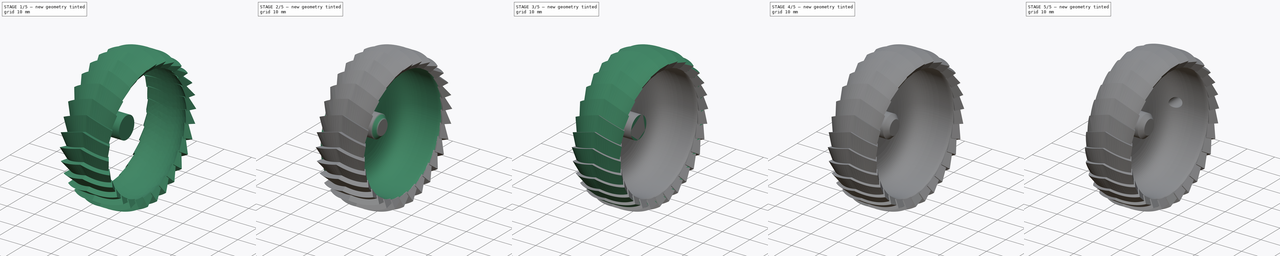
[diagram: build sequence overview — one tinted view per stage of 5, left to right]
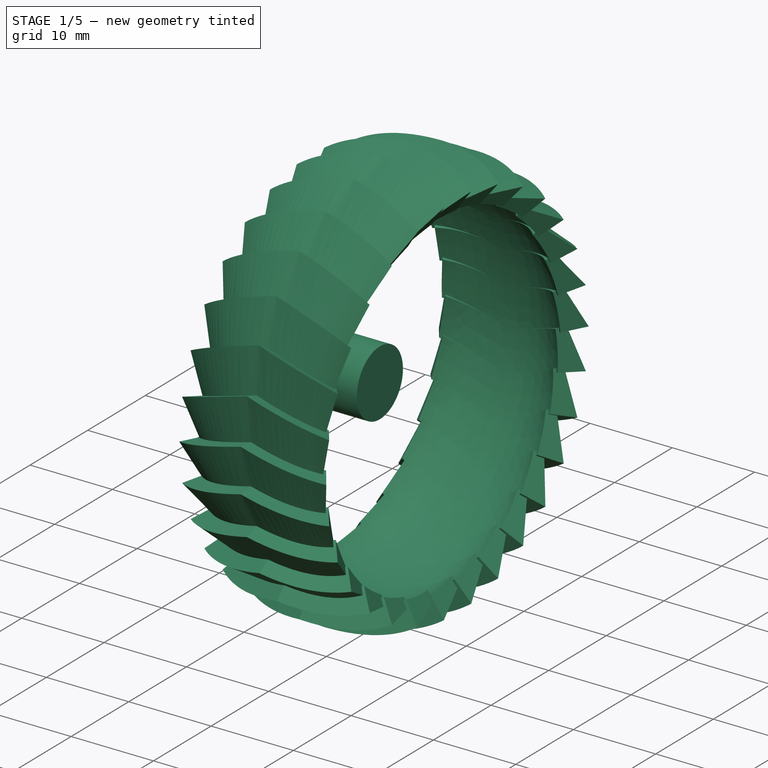
[diagram: stage 1 of 5 — iso view after this stage's code; geometry added in this stage tinted green]
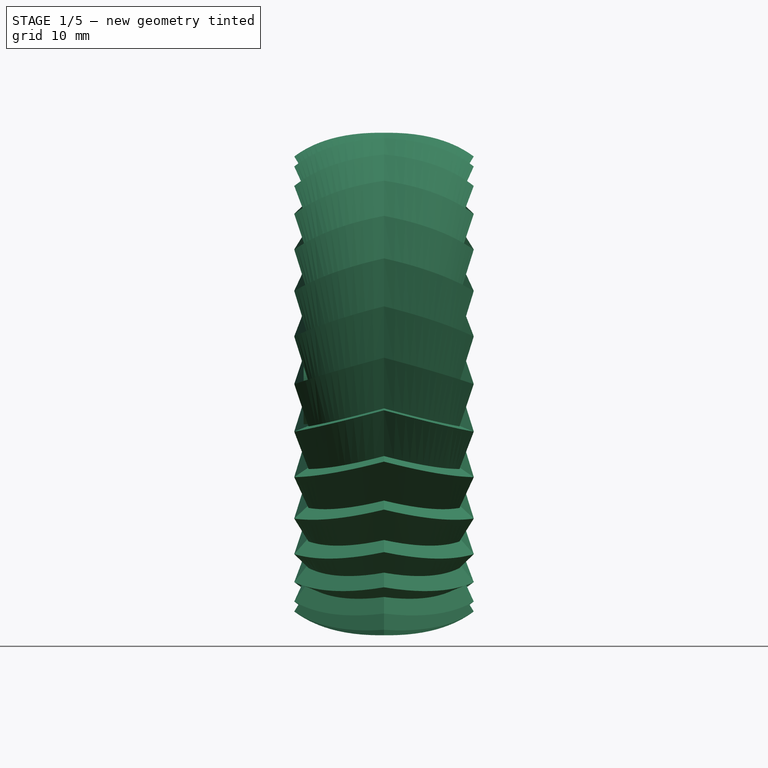
[diagram: stage 1 of 5 — front view after this stage's code; geometry added in this stage tinted green]
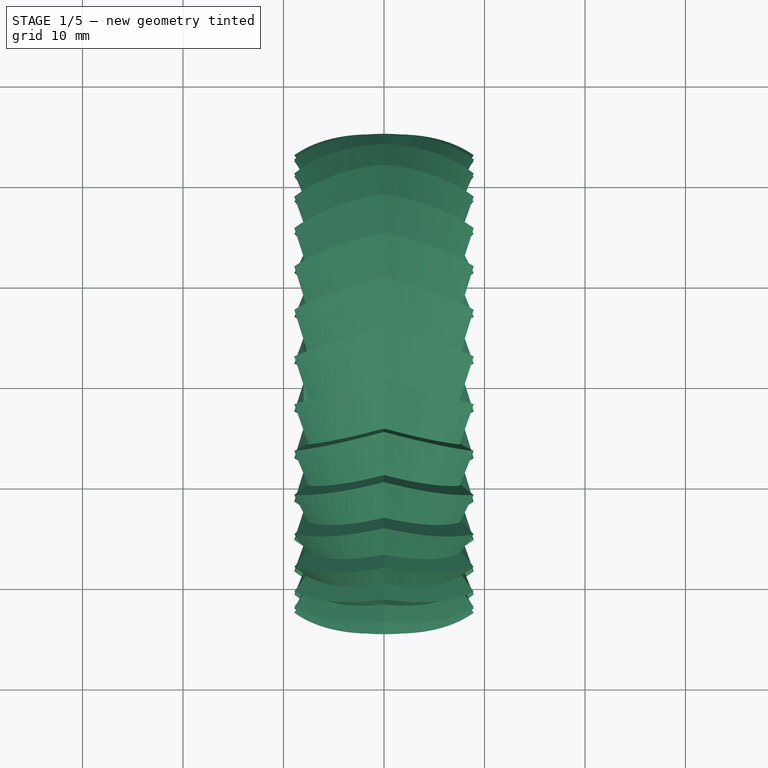
[diagram: stage 1 of 5 — top view after this stage's code; geometry added in this stage tinted green]
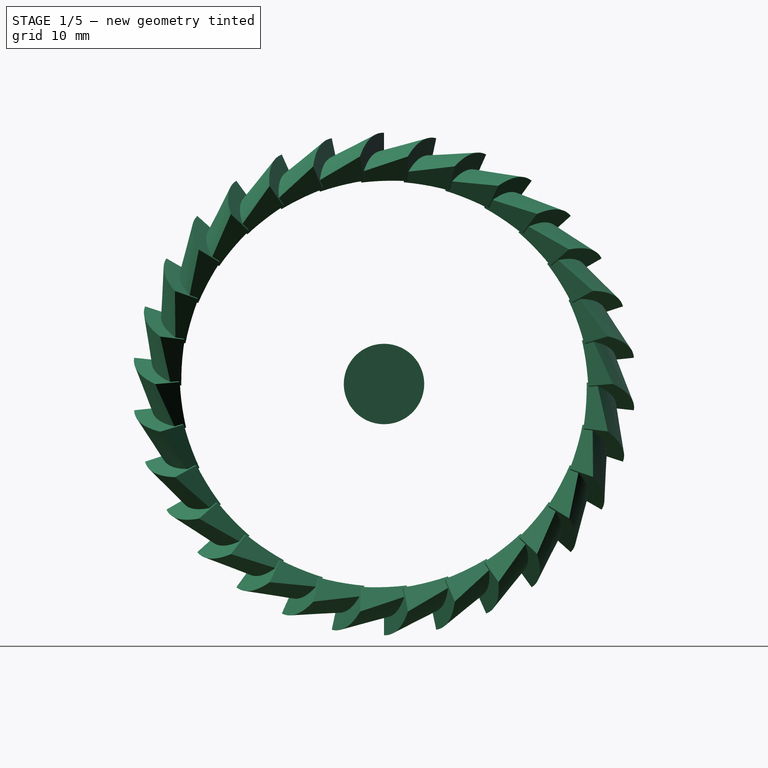
[diagram: stage 1 of 5 — right view after this stage's code; geometry added in this stage tinted green]
FCSTD DOCUMENT  (FreeCAD 2021.717R24301 +3627 (Git))
Label: wheel
License: All rights reserved
LicenseURL: http://en.wikipedia.org/wiki/All_rights_reserved
objects: Sketcher::SketchObject×18, PartDesign::Pocket×8, PartDesign::Chamfer×5, PartDesign::Plane×4, PartDesign::AdditivePipe×2, PartDesign::PolarPattern×2, PartDesign::Mirrored×2, PartDesign::Pad×2, PartDesign::Revolution×2, PartDesign::Groove×2, PartDesign::Body×2, Spreadsheet::Sheet×1
note: 99 computed .brp shape members not serialized (recipe doc carries the construction recipe); baked Part::Feature solids carry a one-line shape summary decoded from their .brp

FEATURE [Sketcher::SketchObject] Sketch
  FullyConstrained = true
  MapMode = 5
  Placement = pos=(0,0,0) rot=(0.57735,0.57735,0.57735;2.0944rad)
  Support = -> [YZ_Plane]
  sketch-geometry (6):
    g0: ArcOfCircle CenterX=0 CenterY=0 CenterZ=0 NormalX=0 NormalY=0 NormalZ=1 AngleXU=0 Radius=22 StartAngle=1.5708 EndAngle=1.78024
    g1: LineSegment StartX=-4.82355 StartY=22.693 StartZ=0 EndX=0 EndY=25 EndZ=0
    g2: LineSegment StartX=0 StartY=25 StartZ=0 EndX=0 EndY=22 EndZ=0
    g3: LineSegment StartX=-4.82355 StartY=22.693 StartZ=0 EndX=-4.57406 EndY=21.5192 EndZ=0
    g4: LineSegment [constr] StartX=0 StartY=0 StartZ=0 EndX=0 EndY=22 EndZ=0
    g5: LineSegment [constr] StartX=-4.57406 StartY=21.5192 StartZ=0 EndX=0 EndY=0 EndZ=0
  constraints (16):
    c: Coincident(g0,g-1)
    c: Angle(g0) = 0.20944
    c: Coincident(g2,g1)
    c: Coincident(g2,g0)
    c: Coincident(g3,g1)
    c: Coincident(g3,g0)
    c: Distance(g2) = 3
    c: Distance(g3) = 1.2
    c: Vertical(g2)
    c: Coincident(g4,g0)
    c: Coincident(g4,g0)
    c: Parallel(g4,g2)
    c: Coincident(g5,g0)
    c: Coincident(g5,g0)
    c: Parallel(g3,g5)
    c: DistanceY(g-1,g1) = 25
FEATURE [PartDesign::Plane] DatumPlane
  AttachmentOffset = pos=(0,0,0) rot=(0,1,0;0.261799rad)
  Length = 10
  MapMode = 5
  MinimumLength = 10
  MinimumWidth = 10
  Placement = pos=(0,0,0) rot=(0.983106,0.129428,0.129428;1.58783rad)
  ResizeMode = 0
  Support = -> [XZ_Plane]
  Width = 10
FEATURE [Sketcher::SketchObject] Sketch001
  FullyConstrained = false
  MapMode = 5
  Placement = pos=(0,0,0) rot=(0.983106,0.129428,0.129428;1.58783rad)
  Support = -> [DatumPlane]
  sketch-geometry (6):
    g0: Circle [constr] CenterX=0 CenterY=22.9172 CenterZ=0 NormalX=0 NormalY=0 NormalZ=1 AngleXU=0 Radius=1
    g1: Circle [constr] CenterX=-5.18027 CenterY=22.9985 CenterZ=0 NormalX=0 NormalY=0 NormalZ=1 AngleXU=0 Radius=1
    g2: Circle [constr] CenterX=-8 CenterY=20.9658 CenterZ=0 NormalX=0 NormalY=0 NormalZ=1 AngleXU=0 Radius=1
    g3: BSplineCurve PolesCount=3 KnotsCount=2 Degree=2 IsPeriodic=0
    g4: GeomPoint [constr] X=0 Y=22.9172 Z=0
    g5: GeomPoint [constr] X=-8 Y=20.9658 Z=0
  constraints (10):
    c: PointOnObject(g3,g-2)
    c: Weight(g0) = 1
    c: Equal(g0,g1)
    c: Equal(g0,g2)
    c: InternalAlignment(g0,g3)
    c: InternalAlignment(g1,g3)
    c: InternalAlignment(g2,g3)
    c: InternalAlignment(g4,g3)
    c: InternalAlignment(g5,g3)
    c: DistanceX(g3,g-1) = 8
FEATURE [PartDesign::AdditivePipe] AdditivePipe
  AuxilleryCurvelinear = true
  AuxillerySpineTangent = false
  Binormal = (0,0,0)
  ClaimChildren = false
  Fit = 0
  FitJoin = 0
  InnerFit = 0
  InnerFitJoin = 0
  Mode = 0
  NewSolid = false
  Placement = pos=(0,0,0) rot=(0.57735,0.57735,0.57735;2.0944rad)
  Profile = -> Sketch
  Spine = -> Sketch001 [Edge1]
  SpineTangent = false
  Suppress = false
  Transformation = 0
  Transition = 1
  _ProfileBasedVersion = 1
FEATURE [PartDesign::PolarPattern] PolarPattern
  Angle = 360
  Axis = -> Sketch [N_Axis]
  BaseFeature = -> AdditivePipe
  CopyShape = false
  NewSolid = false
  Occurrences = 30
  OriginalSubs = -> [AdditivePipe]
  Originals = -> [AdditivePipe]
  ParallelTransform = true
  Placement = pos=(0,0,0) rot=(0.57735,0.57735,0.57735;2.0944rad)
  SubTransform = true
  Suppress = false
FEATURE [PartDesign::Mirrored] Mirrored
  BaseFeature = -> PolarPattern
  CopyShape = false
  MirrorPlane = -> YZ_Plane
  NewSolid = false
  OriginalSubs = -> [PolarPattern,AdditivePipe]
  Originals = -> [PolarPattern,AdditivePipe]
  ParallelTransform = true
  Placement = pos=(0,0,0) rot=(0.57735,0.57735,0.57735;2.0944rad)
  SubTransform = true
  Suppress = false
FEATURE [PartDesign::Plane] DatumPlane001
  AttachmentOffset = pos=(0,0,-8) rot=(0,0,1;0rad)
  Length = 49.7261
  MapMode = 5
  MinimumLength = 10
  MinimumWidth = 10
  Placement = pos=(-8,1.8e-15,-1.8e-15) rot=(0.57735,0.57735,0.57735;2.0944rad)
  ResizeMode = 0
  Support = -> [YZ_Plane]
  Width = 50
FEATURE [Sketcher::SketchObject] Sketch002
  FullyConstrained = true
  MapMode = 5
  Placement = pos=(-8,1.8e-15,-1.8e-15) rot=(0.57735,0.57735,0.57735;2.0944rad)
  Support = -> [DatumPlane001]
  expr: Constraints[1] = <<Params>>.motor_mount_diameter
  sketch-geometry (1):
    g0: Circle CenterX=0 CenterY=0 CenterZ=0 NormalX=0 NormalY=0 NormalZ=1 AngleXU=0 Radius=4
  constraints (2):
    c: Coincident(g0,g-1)
    c: Diameter(g0) = 8
FEATURE [PartDesign::Pad] Pad
  BaseFeature = -> Mirrored
  ClaimChildren = false
  Direction = (1,1,1)
  Fit = 0
  FitJoin = 0
  InnerFit = 0
  InnerFitJoin = 0
  InnerTaperAngle = 0
  InnerTaperAngleRev = 0
  Length = 7.5
  Length2 = 100
  Linearize = true
  NewSolid = false
  Placement = pos=(0,0,0) rot=(0.57735,0.57735,0.57735;2.0944rad)
  Profile = -> Sketch002
  Suppress = false
  Type = 0
  _ProfileBasedVersion = 1
  expr: Length = <<Params>>.motor_mount_insert_depth + 1
FEATURE [Sketcher::SketchObject] Sketch003
  FullyConstrained = true
  MapMode = 5
  Placement = pos=(-8,0,0) rot=(0.57735,0.57735,-0.57735;4.18879rad)
  Support = -> [Pad]
  expr: Constraints[3] = <<Params>>.motor_shaft_flat_diameter / 2
  expr: Constraints[7] = <<Params>>.motor_shaft_diameter
  sketch-geometry (4):
    g0: LineSegment StartX=1.25 StartY=0.958188 StartZ=0 EndX=1.25 EndY=-0.958188 EndZ=0
    g1: GeomPoint [constr] X=1.25 Y=-0.958188 Z=0
    g2: ArcOfCircle CenterX=0 CenterY=0 CenterZ=0 NormalX=0 NormalY=0 NormalZ=1 AngleXU=0 Radius=1.575 StartAngle=0.65401 EndAngle=5.62918
    g3: GeomPoint [constr] X=1.25 Y=0 Z=0
  constraints (8):
    c: Coincident(g2,g-1)
    c: Coincident(g2,g0)
    c: Coincident(g2,g1)
    c: DistanceX(g2,g3) = 1.25
    c: Horizontal(g3,g2)
    c: Coincident(g0,g2)
    c: Symmetric(g0,g0,g3)
    c: Diameter(g2) = 3.15
FEATURE [PartDesign::Pocket] Pocket
  BaseFeature = -> Pad
  ClaimChildren = false
  Fit = 0
  FitJoin = 0
  InnerFit = 0
  InnerFitJoin = 0
  InnerTaperAngle = 0
  InnerTaperAngleRev = 0
  Length = 6.5
  Length2 = 100
  Linearize = true
  NewSolid = false
  Placement = pos=(0,0,0) rot=(0.57735,0.57735,0.57735;2.0944rad)
  Profile = -> Sketch003
  Suppress = false
  Type = 0
  _ProfileBasedVersion = 1
  expr: Length = <<Params>>.motor_mount_insert_depth
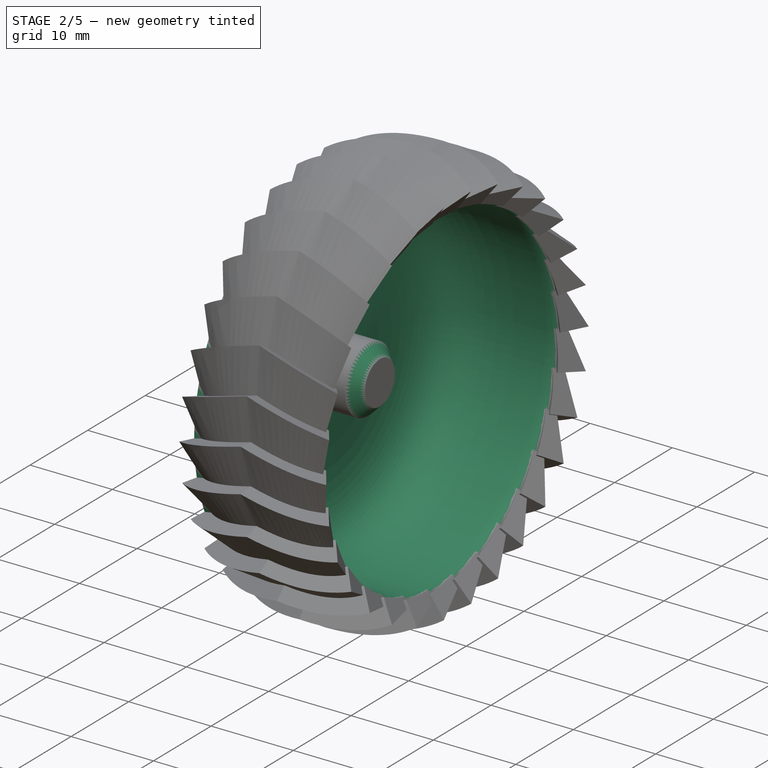
[diagram: stage 2 of 5 — iso view after this stage's code; geometry added in this stage tinted green]
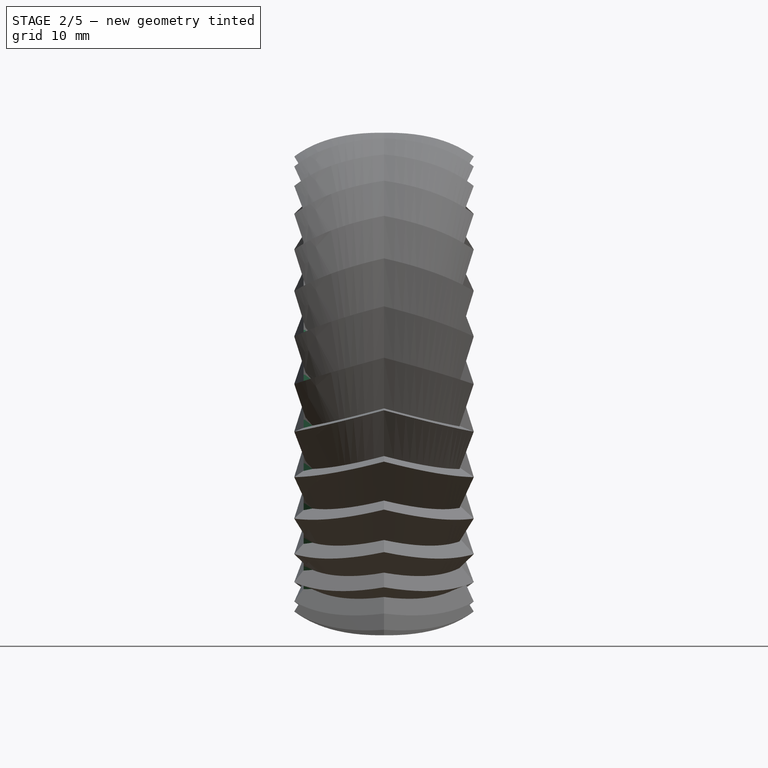
[diagram: stage 2 of 5 — front view after this stage's code; geometry added in this stage tinted green]
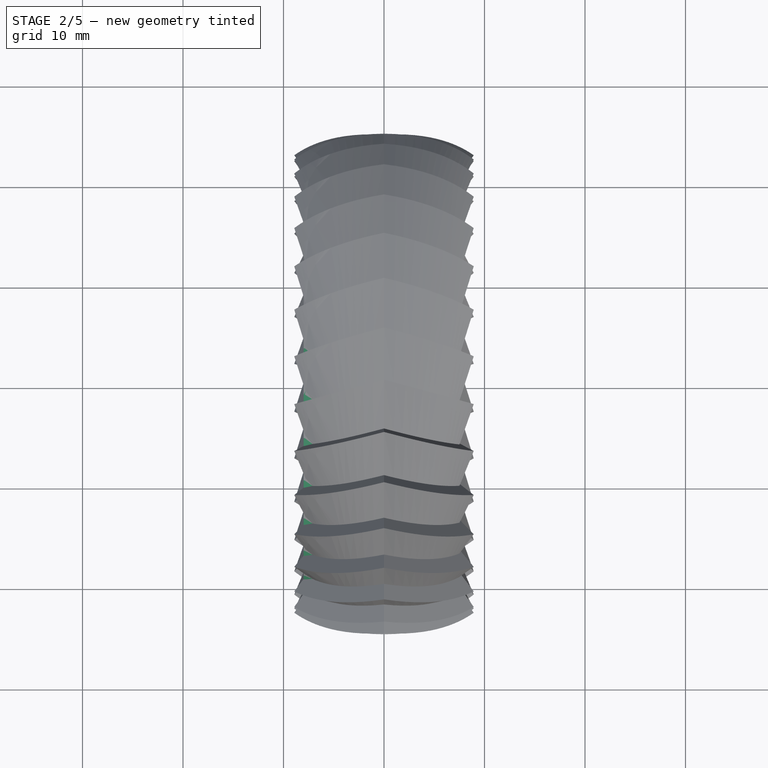
[diagram: stage 2 of 5 — top view after this stage's code; geometry added in this stage tinted green]
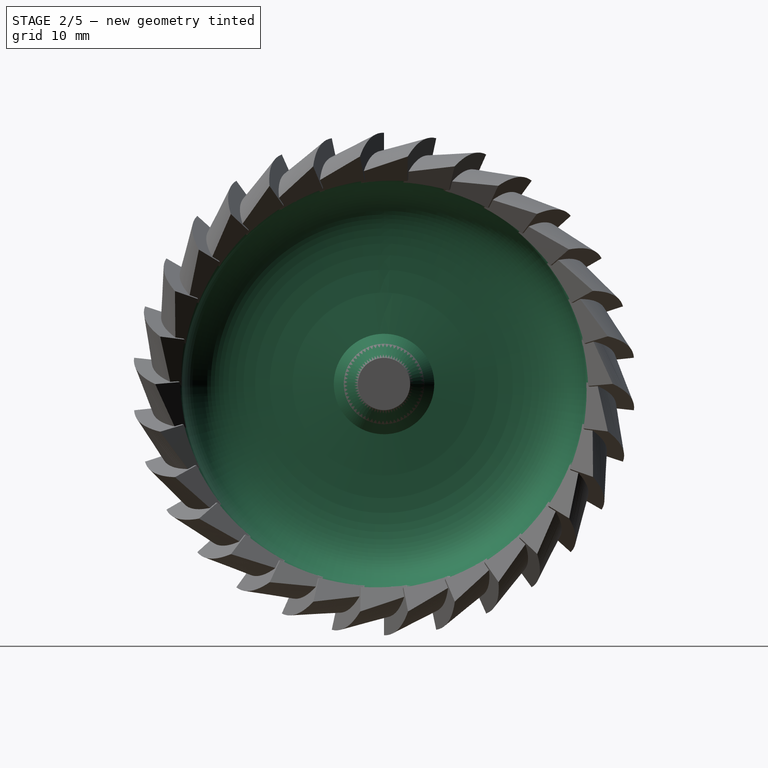
[diagram: stage 2 of 5 — right view after this stage's code; geometry added in this stage tinted green]
FEATURE [Sketcher::SketchObject] Sketch004
  ExternalGeometry = -> [Pocket]
  FullyConstrained = true
  MapMode = 5
  Placement = pos=(8e-16,1.25,-1e-16) rot=(0.57735,0.57735,-0.57735;2.0944rad)
  Support = -> [Pocket]
  sketch-geometry (1):
    g0: Circle CenterX=0 CenterY=-4 CenterZ=0 NormalX=0 NormalY=0 NormalZ=1 AngleXU=0 Radius=1.375
  constraints (3):
    c: Vertical(g0,g-1)
    c: Diameter(g0) = 2.75
    c: DistanceY(g-3,g0) = 4
FEATURE [PartDesign::Pocket] Pocket001
  BaseFeature = -> Pocket
  ClaimChildren = false
  Fit = 0
  FitJoin = 0
  InnerFit = 0
  InnerFitJoin = 0
  InnerTaperAngle = 0
  InnerTaperAngleRev = 0
  Length = 5
  Length2 = 100
  Linearize = true
  NewSolid = false
  Placement = pos=(0,0,0) rot=(0.57735,0.57735,0.57735;2.0944rad)
  Profile = -> Sketch004
  Suppress = false
  Type = 0
  _ProfileBasedVersion = 1
FEATURE [Sketcher::SketchObject] Sketch005
  ExternalGeometry = -> [Pocket001]
  FullyConstrained = true
  MapMode = 5
  Placement = pos=(8e-16,1.25,-1e-16) rot=(0.57735,0.57735,-0.57735;2.0944rad)
  Support = -> [Pocket001]
  sketch-geometry (1):
    g0: Circle CenterX=0 CenterY=-4 CenterZ=0 NormalX=0 NormalY=0 NormalZ=1 AngleXU=0 Radius=1.75
  constraints (2):
    c: Coincident(g0,g-3)
    c: Diameter(g0) = 3.5
FEATURE [Sketcher::SketchObject] Sketch006
  FullyConstrained = false
  MapMode = 2
  Placement = pos=(0,0,0) rot=(1,0,0;1.5708rad)
  Support = -> [XZ_Plane]
  sketch-geometry (17):
    g0: LineSegment StartX=-8 StartY=3 StartZ=0 EndX=-8 EndY=21.5 EndZ=0
    g1-g8: Circle [constr] x8 (B-spline internal-alignment scaffolding for g9; pole/knot coordinates omitted)
    g9: BSplineCurve PolesCount=8 KnotsCount=6 Degree=3 IsPeriodic=0
    g10-g15: GeomPoint [constr] x6 (B-spline internal-alignment scaffolding for g9; pole/knot coordinates omitted)
    g16: LineSegment StartX=-6.5283 StartY=3 StartZ=0 EndX=-8 EndY=3 EndZ=0
  constraints (12):
    c: Vertical(g0)
    c: Coincident(g9,g0)
    c: Weight(g1) = 1
    c: Equal(g1, g2-g8) x7
    c: InternalAlignment(g1-g8 -> g9) x8
    c: InternalAlignment(g10-g15 -> g9) x6
    c: Coincident(g16,g9)
    c: Coincident(g16,g0)
    c: Horizontal(g16)
    c: DistanceY(g-1,g9) = 3
    c: DistanceX(g0,g-1) = 8
    c: DistanceY(g-1,g0) = 21.5  'BackHeight'
FEATURE [PartDesign::Chamfer] Chamfer
  Angle = 45
  Base = -> Pocket001 [Edge939,Edge938]
  BaseFeature = -> Pocket001
  ChamferType = 0
  FlipDirection = false
  NewSolid = false
  Placement = pos=(0,0,0) rot=(0.57735,0.57735,0.57735;2.0944rad)
  Size = 0.6
  Size2 = 1
  SupportTransform = false
  Suppress = false
FEATURE [PartDesign::Chamfer] Chamfer001
  Angle = 45
  Base = -> Chamfer [Edge12]
  BaseFeature = -> Chamfer
  ChamferType = 0
  FlipDirection = false
  NewSolid = false
  Placement = pos=(0,0,0) rot=(0.57735,0.57735,0.57735;2.0944rad)
  Size = 1.4
  Size2 = 1
  SupportTransform = false
  Suppress = false
FEATURE [PartDesign::Revolution] Revolution
  Angle = 360
  Axis = (1,0,0)
  Base = (0,0,0)
  BaseFeature = -> Chamfer001
  ClaimChildren = false
  Fit = 0
  FitJoin = 0
  InnerFit = 0
  InnerFitJoin = 0
  NewSolid = false
  Placement = pos=(0,0,0) rot=(0.57735,0.57735,0.57735;2.0944rad)
  Profile = -> Sketch006
  ReferenceAxis = -> X_Axis
  Refine = true
  Suppress = false
  _ProfileBasedVersion = 1
FEATURE [PartDesign::Body] Body001  label="Wheel"
  AutoGroupSolids = false
  ExportMode = 0
  Group = -> [Sketch009,DatumPlane002,Sketch010,AdditivePipe001,PolarPattern001,Mirrored001,DatumPlane003,Sketch011,Pad001,Sketch012,Pocket004,Sketch013,Pocket005,Chamfer002,Chamfer003,Revolution001,Sketch014,Pocket006,Sketch015,Sketch016,Pocket007,Sketch017,Groove001]
  Origin = -> Origin001
  Tip = -> Groove001
  _ExportChildren = -> [DatumPlane002,AdditivePipe001,PolarPattern001,Mirrored001,DatumPlane003,Pad001,Pocket004,Pocket005,Chamfer002,Chamfer003,Revolution001,Pocket006,Pocket007,Groove001]
  _GroupVersion = 1
FEATURE [PartDesign::Chamfer] Chamfer004
  Angle = 45
  Base = -> Revolution [Edge5,Edge6]
  BaseFeature = -> Revolution
  ChamferType = 0
  FlipDirection = false
  NewSolid = false
  Placement = pos=(0,0,0) rot=(0.57735,0.57735,0.57735;2.0944rad)
  Size = 1
  Size2 = 1
  SupportTransform = false
  Suppress = false
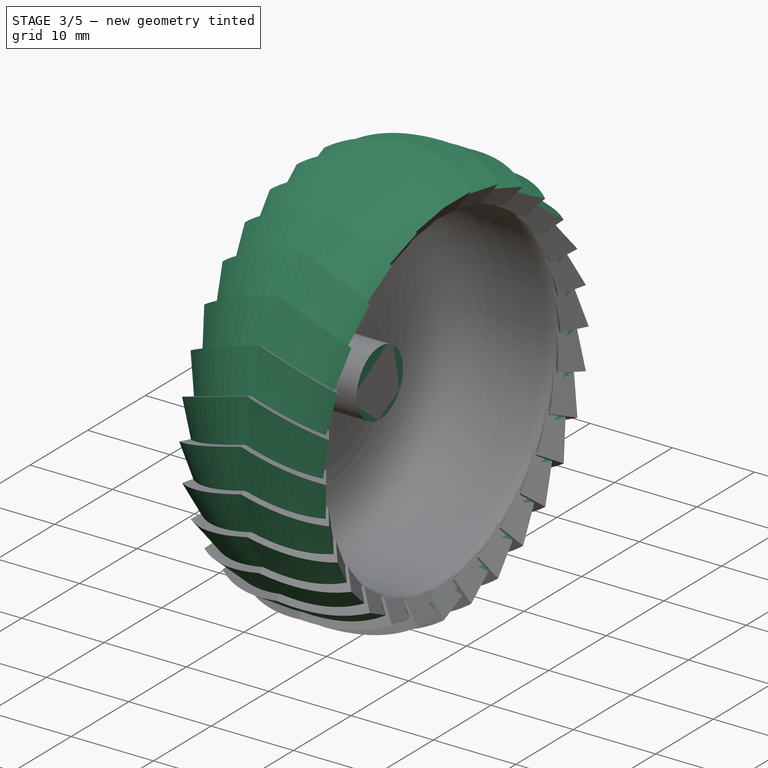
[diagram: stage 3 of 5 — iso view after this stage's code; geometry added in this stage tinted green]
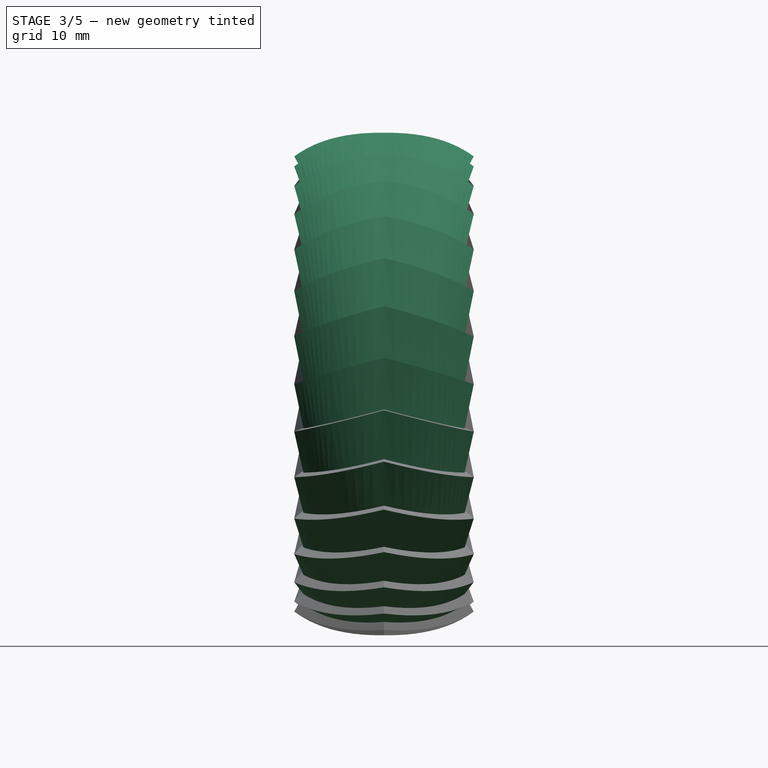
[diagram: stage 3 of 5 — front view after this stage's code; geometry added in this stage tinted green]
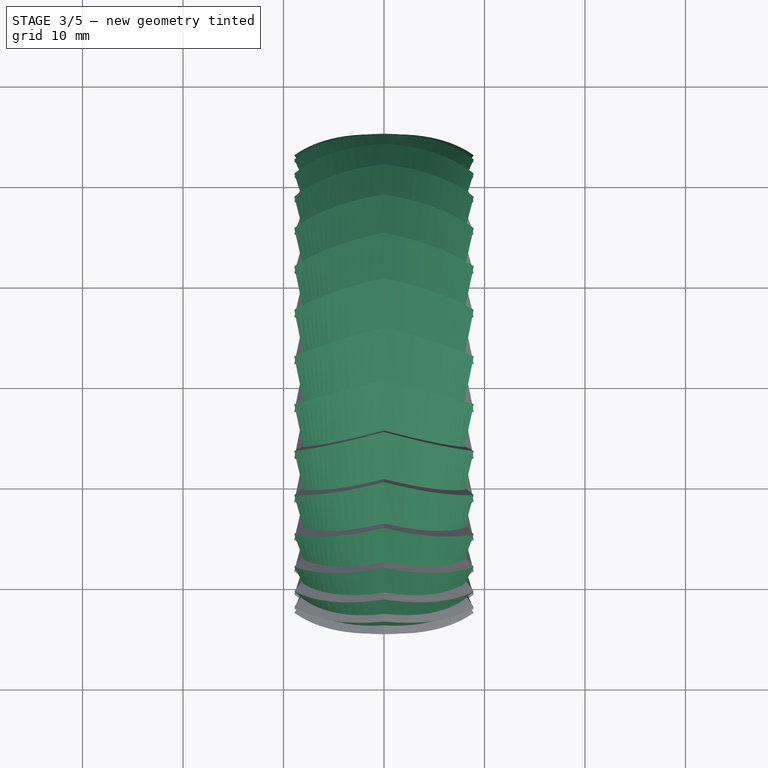
[diagram: stage 3 of 5 — top view after this stage's code; geometry added in this stage tinted green]
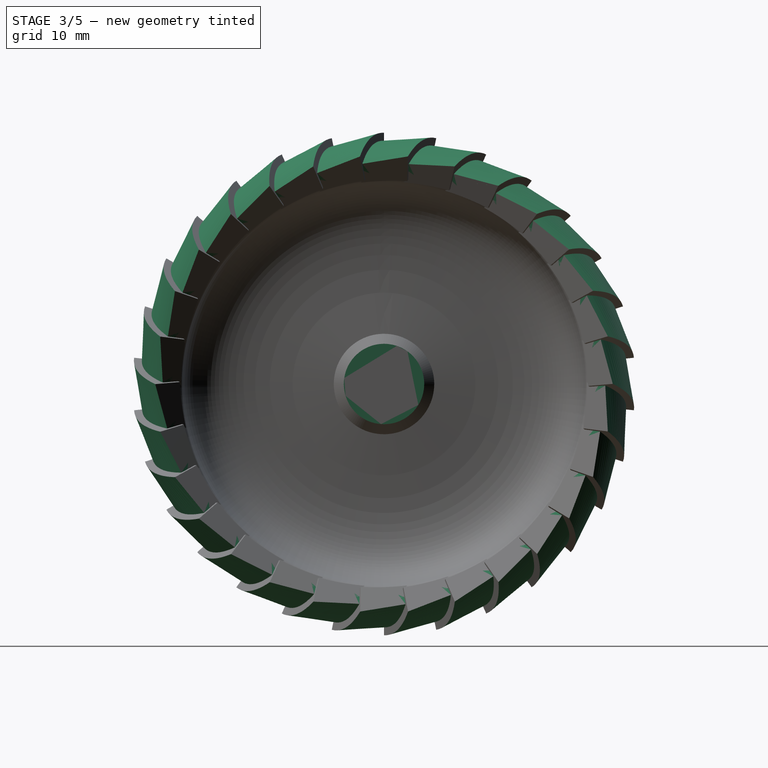
[diagram: stage 3 of 5 — right view after this stage's code; geometry added in this stage tinted green]
FEATURE [Spreadsheet::Sheet] Spreadsheet  label="Params"
  PythonMode = false
  cells = A1=diameter; B1(diameter)==50mm; A2=motor_shaft_diameter; B2(motor_shaft_diameter)==3.15mm; A3=motor_shaft_flat_diameter; B3(motor_shaft_flat_diameter)==2.5mm; A4=motor_mount_diameter; B4(motor_mount_diameter)==8mm; A5=motor_mount_insert_depth; B5(motor_mount_insert_depth)==6.5mm
FEATURE [Sketcher::SketchObject] Sketch007
  FullyConstrained = true
  MapMode = 5
  Placement = pos=(-8,1.8e-15,-1.8e-15) rot=(0.57735,0.57735,0.57735;2.0944rad)
  Support = -> [DatumPlane001]
  expr: Constraints[1] = <<Params>>.diameter * 1
  sketch-geometry (1):
    g0: Circle CenterX=0 CenterY=0 CenterZ=0 NormalX=0 NormalY=0 NormalZ=1 AngleXU=0 Radius=25
  constraints (2):
    c: Coincident(g0,g-1)
    c: Diameter(g0) = 50
FEATURE [Sketcher::SketchObject] Sketch008
  FullyConstrained = false
  MapMode = 5
  Support = -> [XY_Plane]
  sketch-geometry (8):
    g0: LineSegment StartX=-8 StartY=23.6833 StartZ=0 EndX=-8 EndY=18.2689 EndZ=0
    g1: LineSegment StartX=-8 StartY=23.6833 StartZ=0 EndX=-6.50624 EndY=24.0515 EndZ=0
    g2: Circle [constr] CenterX=-6.50624 CenterY=24.0515 CenterZ=0 NormalX=0 NormalY=0 NormalZ=1 AngleXU=0 Radius=1
    g3: Circle [constr] CenterX=-7.99449 CenterY=23.7727 CenterZ=0 NormalX=0 NormalY=0 NormalZ=1 AngleXU=0 Radius=1
    g4: Circle [constr] CenterX=-8 CenterY=18.2689 CenterZ=0 NormalX=0 NormalY=0 NormalZ=1 AngleXU=0 Radius=1
    g5: BSplineCurve PolesCount=3 KnotsCount=2 Degree=2 IsPeriodic=0
    g6: GeomPoint [constr] X=-6.50624 Y=24.0515 Z=0
    g7: GeomPoint [constr] X=-8 Y=18.2689 Z=0
  constraints (13):
    c: Vertical(g0)
    c: DistanceX(g0,g-1) = 8
    c: Coincident(g1,g0)
    c: Coincident(g5,g1)
    c: Weight(g2) = 1
    c: Equal(g2,g3)
    c: Equal(g2,g4)
    c: Coincident(g5,g0)
    c: InternalAlignment(g2,g5)
    c: InternalAlignment(g3,g5)
    c: InternalAlignment(g4,g5)
    c: InternalAlignment(g6,g5)
    c: InternalAlignment(g7,g5)
FEATURE [PartDesign::Plane] DatumPlane002
  AttachmentOffset = pos=(0,0,0) rot=(0,1,0;0.261799rad)
  Length = 10
  MapMode = 5
  MinimumLength = 10
  MinimumWidth = 10
  Placement = pos=(0,0,0) rot=(0.983106,0.129428,0.129428;1.58783rad)
  ResizeMode = 0
  Support = -> [XZ_Plane001]
  Width = 10
FEATURE [Sketcher::SketchObject] Sketch009
  FullyConstrained = true
  MapMode = 5
  Placement = pos=(0,0,0) rot=(0.57735,0.57735,0.57735;2.0944rad)
  Support = -> [YZ_Plane001]
  sketch-geometry (6):
    g0: ArcOfCircle CenterX=0 CenterY=0 CenterZ=0 NormalX=0 NormalY=0 NormalZ=1 AngleXU=0 Radius=23 StartAngle=1.5708 EndAngle=1.78024
    g1: LineSegment StartX=-5.03146 StartY=23.6712 StartZ=0 EndX=1.8e-15 EndY=25 EndZ=0
    g2: LineSegment StartX=1.4e-15 StartY=25 StartZ=0 EndX=1.4e-15 EndY=23 EndZ=0
    g3: LineSegment StartX=-5.03146 StartY=23.6712 StartZ=0 EndX=-4.78197 EndY=22.4974 EndZ=0
    g4: LineSegment [constr] StartX=0 StartY=0 StartZ=0 EndX=1.4e-15 EndY=23 EndZ=0
    g5: LineSegment [constr] StartX=-4.78197 StartY=22.4974 StartZ=0 EndX=0 EndY=0 EndZ=0
  constraints (16):
    c: Coincident(g0,g-1)
    c: Angle(g0) = 0.20944
    c: Coincident(g2,g1)
    c: Coincident(g2,g0)
    c: Coincident(g3,g1)
    c: Coincident(g3,g0)
    c: Distance(g2) = 2
    c: Distance(g3) = 1.2
    c: Vertical(g2)
    c: Coincident(g4,g0)
    c: Coincident(g4,g0)
    c: Parallel(g4,g2)
    c: Coincident(g5,g0)
    c: Coincident(g5,g0)
    c: Parallel(g3,g5)
    c: DistanceY(g-1,g1) = 25
FEATURE [Sketcher::SketchObject] Sketch010
  FullyConstrained = false
  MapMode = 5
  Placement = pos=(0,0,0) rot=(0.983106,0.129428,0.129428;1.58783rad)
  Support = -> [DatumPlane002]
  sketch-geometry (6):
    g0: Circle [constr] CenterX=0 CenterY=22.9172 CenterZ=0 NormalX=0 NormalY=0 NormalZ=1 AngleXU=0 Radius=1
    g1: Circle [constr] CenterX=-5.18027 CenterY=22.9985 CenterZ=0 NormalX=0 NormalY=0 NormalZ=1 AngleXU=0 Radius=1
    g2: Circle [constr] CenterX=-8 CenterY=20.9658 CenterZ=0 NormalX=0 NormalY=0 NormalZ=1 AngleXU=0 Radius=1
    g3: BSplineCurve PolesCount=3 KnotsCount=2 Degree=2 IsPeriodic=0
    g4: GeomPoint [constr] X=0 Y=22.9172 Z=0
    g5: GeomPoint [constr] X=-8 Y=20.9658 Z=0
  constraints (10):
    c: PointOnObject(g3,g-2)
    c: Weight(g0) = 1
    c: Equal(g0,g1)
    c: Equal(g0,g2)
    c: InternalAlignment(g0,g3)
    c: InternalAlignment(g1,g3)
    c: InternalAlignment(g2,g3)
    c: InternalAlignment(g4,g3)
    c: InternalAlignment(g5,g3)
    c: DistanceX(g3,g-1) = 8
FEATURE [PartDesign::AdditivePipe] AdditivePipe001
  AuxilleryCurvelinear = true
  AuxillerySpineTangent = false
  Binormal = (0,0,0)
  ClaimChildren = false
  Fit = 0
  FitJoin = 0
  InnerFit = 0
  InnerFitJoin = 0
  Mode = 0
  NewSolid = false
  Placement = pos=(0,0,0) rot=(0.57735,0.57735,0.57735;2.0944rad)
  Profile = -> Sketch009
  Spine = -> Sketch010 [Edge1]
  SpineTangent = false
  Suppress = false
  Transformation = 0
  Transition = 1
  _ProfileBasedVersion = 1
FEATURE [PartDesign::PolarPattern] PolarPattern001
  Angle = 360
  Axis = -> Sketch009 [N_Axis]
  BaseFeature = -> AdditivePipe001
  CopyShape = false
  NewSolid = false
  Occurrences = 30
  OriginalSubs = -> [AdditivePipe001]
  Originals = -> [AdditivePipe001]
  ParallelTransform = true
  Placement = pos=(0,0,0) rot=(0.57735,0.57735,0.57735;2.0944rad)
  SubTransform = true
  Suppress = false
FEATURE [PartDesign::Mirrored] Mirrored001
  BaseFeature = -> PolarPattern001
  CopyShape = false
  MirrorPlane = -> YZ_Plane001
  NewSolid = false
  OriginalSubs = -> [PolarPattern001,AdditivePipe001]
  Originals = -> [PolarPattern001,AdditivePipe001]
  ParallelTransform = true
  Placement = pos=(0,0,0) rot=(0.57735,0.57735,0.57735;2.0944rad)
  SubTransform = true
  Suppress = false
FEATURE [PartDesign::Plane] DatumPlane003
  AttachmentOffset = pos=(0,0,-8) rot=(0,0,1;0rad)
  Length = 49.7261
  MapMode = 5
  MinimumLength = 10
  MinimumWidth = 10
  Placement = pos=(-8,1.8e-15,-1.8e-15) rot=(0.57735,0.57735,0.57735;2.0944rad)
  ResizeMode = 0
  Support = -> [YZ_Plane001]
  Width = 50
FEATURE [Sketcher::SketchObject] Sketch011
  FullyConstrained = true
  MapMode = 5
  Placement = pos=(-8,1.8e-15,-1.8e-15) rot=(0.57735,0.57735,0.57735;2.0944rad)
  Support = -> [DatumPlane003]
  expr: Constraints[1] = <<Params>>.motor_mount_diameter
  sketch-geometry (1):
    g0: Circle CenterX=0 CenterY=0 CenterZ=0 NormalX=0 NormalY=0 NormalZ=1 AngleXU=0 Radius=4
  constraints (2):
    c: Coincident(g0,g-1)
    c: Diameter(g0) = 8
FEATURE [PartDesign::Pad] Pad001
  BaseFeature = -> Mirrored001
  ClaimChildren = false
  Direction = (1,1,1)
  Fit = 0
  FitJoin = 0
  InnerFit = 0
  InnerFitJoin = 0
  InnerTaperAngle = 0
  InnerTaperAngleRev = 0
  Length = 7.5
  Length2 = 100
  Linearize = true
  NewSolid = false
  Placement = pos=(0,0,0) rot=(0.57735,0.57735,0.57735;2.0944rad)
  Profile = -> Sketch011
  Suppress = false
  Type = 0
  _ProfileBasedVersion = 1
  expr: Length = <<Params>>.motor_mount_insert_depth + 1
FEATURE [Sketcher::SketchObject] Sketch012
  FullyConstrained = true
  MapMode = 5
  Placement = pos=(-8,0,0) rot=(0.57735,0.57735,-0.57735;4.18879rad)
  Support = -> [Pad001]
  expr: Constraints[3] = <<Params>>.motor_shaft_flat_diameter / 2
  expr: Constraints[7] = <<Params001>>.motor_shaft_diameter
  sketch-geometry (4):
    g0: LineSegment StartX=1.25 StartY=0.958188 StartZ=0 EndX=1.25 EndY=-0.958188 EndZ=0
    g1: GeomPoint [constr] X=1.25 Y=-0.958188 Z=0
    g2: ArcOfCircle CenterX=0 CenterY=0 CenterZ=0 NormalX=0 NormalY=0 NormalZ=1 AngleXU=0 Radius=1.575 StartAngle=0.65401 EndAngle=5.62918
    g3: GeomPoint [constr] X=1.25 Y=0 Z=0
  constraints (8):
    c: Coincident(g2,g-1)
    c: Coincident(g2,g0)
    c: Coincident(g2,g1)
    c: DistanceX(g2,g3) = 1.25
    c: Horizontal(g3,g2)
    c: Coincident(g0,g2)
    c: Symmetric(g0,g0,g3)
    c: Diameter(g2) = 3.15
FEATURE [PartDesign::Pocket] Pocket004
  BaseFeature = -> Pad001
  ClaimChildren = false
  Fit = 0
  FitJoin = 0
  InnerFit = 0
  InnerFitJoin = 0
  InnerTaperAngle = 0
  InnerTaperAngleRev = 0
  Length = 6.5
  Length2 = 100
  Linearize = true
  NewSolid = false
  Placement = pos=(0,0,0) rot=(0.57735,0.57735,0.57735;2.0944rad)
  Profile = -> Sketch012
  Suppress = false
  Type = 0
  _ProfileBasedVersion = 1
  expr: Length = <<Params>>.motor_mount_insert_depth
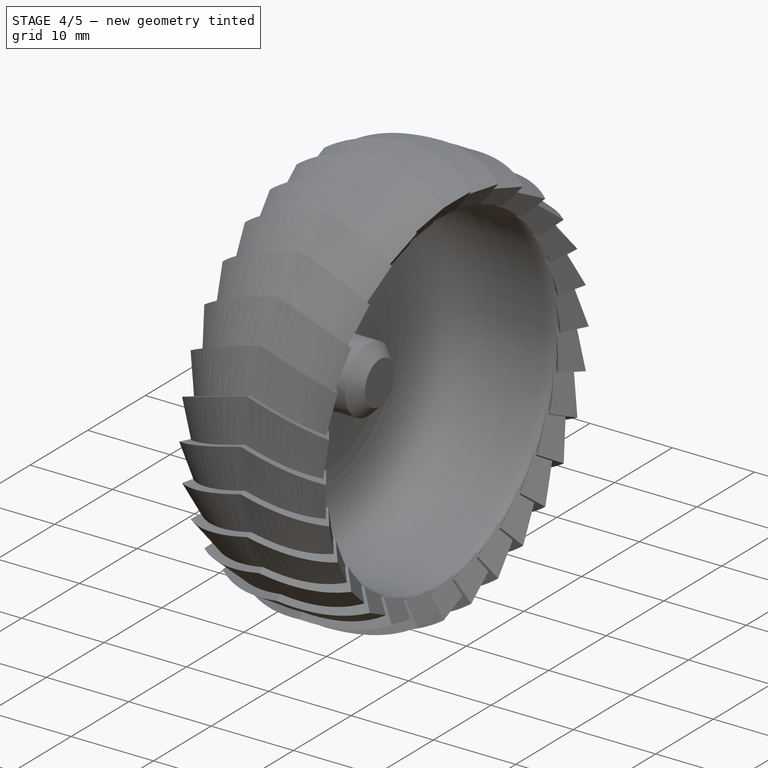
[diagram: stage 4 of 5 — iso view after this stage's code; geometry added in this stage tinted green]
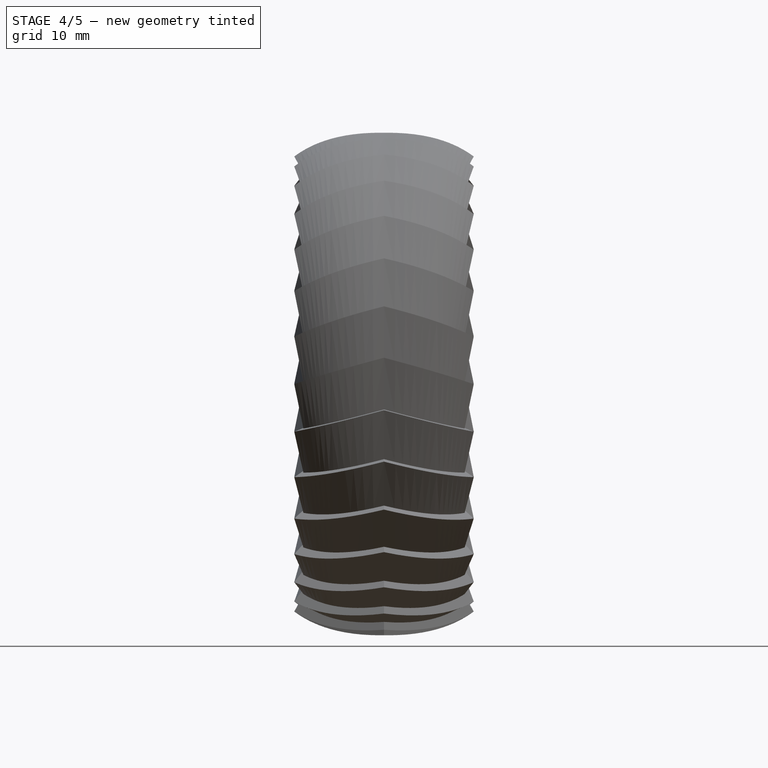
[diagram: stage 4 of 5 — front view after this stage's code; geometry added in this stage tinted green]
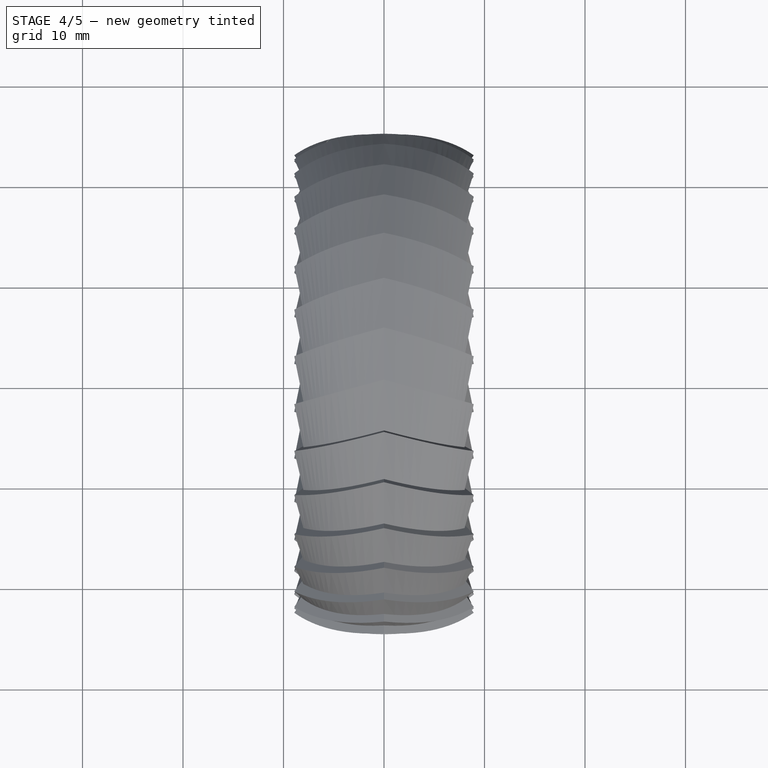
[diagram: stage 4 of 5 — top view after this stage's code; geometry added in this stage tinted green]
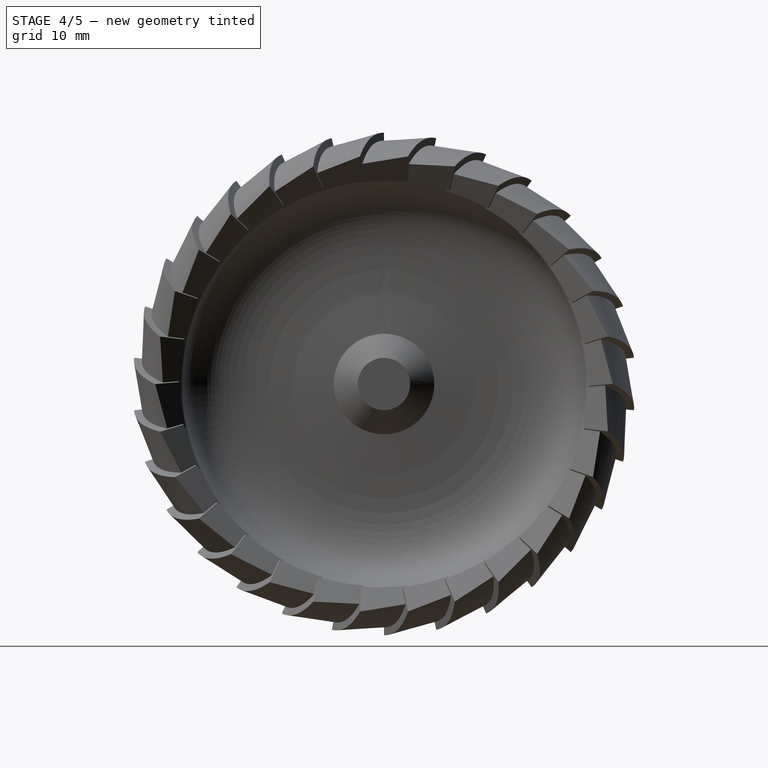
[diagram: stage 4 of 5 — right view after this stage's code; geometry added in this stage tinted green]
FEATURE [Sketcher::SketchObject] Sketch013
  ExternalGeometry = -> [Pocket004]
  FullyConstrained = true
  MapMode = 5
  Placement = pos=(8e-16,1.25,-1e-16) rot=(0.57735,0.57735,-0.57735;2.0944rad)
  Support = -> [Pocket004]
  sketch-geometry (1):
    g0: Circle CenterX=0 CenterY=-4 CenterZ=0 NormalX=0 NormalY=0 NormalZ=1 AngleXU=0 Radius=1.375
  constraints (3):
    c: Vertical(g0,g-1)
    c: Diameter(g0) = 2.75
    c: DistanceY(g-3,g0) = 4
FEATURE [PartDesign::Pocket] Pocket005
  BaseFeature = -> Pocket004
  ClaimChildren = false
  Fit = 0
  FitJoin = 0
  InnerFit = 0
  InnerFitJoin = 0
  InnerTaperAngle = 0
  InnerTaperAngleRev = 0
  Length = 5
  Length2 = 100
  Linearize = true
  NewSolid = false
  Placement = pos=(0,0,0) rot=(0.57735,0.57735,0.57735;2.0944rad)
  Profile = -> Sketch013
  Suppress = false
  Type = 0
  _ProfileBasedVersion = 1
FEATURE [Sketcher::SketchObject] Sketch014
  ExternalGeometry = -> [Pocket005]
  FullyConstrained = true
  MapMode = 5
  Placement = pos=(8e-16,1.25,-1e-16) rot=(0.57735,0.57735,-0.57735;2.0944rad)
  Support = -> [Pocket005]
  sketch-geometry (1):
    g0: Circle CenterX=0 CenterY=-4 CenterZ=0 NormalX=0 NormalY=0 NormalZ=1 AngleXU=0 Radius=1.75
  constraints (2):
    c: Coincident(g0,g-3)
    c: Diameter(g0) = 3.5
FEATURE [Sketcher::SketchObject] Sketch015
  FullyConstrained = false
  MapMode = 2
  Placement = pos=(0,0,0) rot=(1,0,0;1.5708rad)
  Support = -> [XZ_Plane001]
  sketch-geometry (17):
    g0: LineSegment StartX=-8 StartY=3 StartZ=0 EndX=-8 EndY=22 EndZ=0
    g1-g8: Circle [constr] x8 (B-spline internal-alignment scaffolding for g9; pole/knot coordinates omitted)
    g9: BSplineCurve PolesCount=8 KnotsCount=6 Degree=3 IsPeriodic=0
    g10-g15: GeomPoint [constr] x6 (B-spline internal-alignment scaffolding for g9; pole/knot coordinates omitted)
    g16: LineSegment StartX=-6.5283 StartY=3 StartZ=0 EndX=-8 EndY=3 EndZ=0
  constraints (12):
    c: Vertical(g0)
    c: Coincident(g9,g0)
    c: Weight(g1) = 1
    c: Equal(g1, g2-g8) x7
    c: InternalAlignment(g1-g8 -> g9) x8
    c: InternalAlignment(g10-g15 -> g9) x6
    c: Coincident(g16,g9)
    c: Coincident(g16,g0)
    c: Horizontal(g16)
    c: DistanceY(g-1,g9) = 3
    c: DistanceX(g0,g-1) = 8
    c: DistanceY(g-1,g0) = 22  'BackHeight'
FEATURE [PartDesign::Chamfer] Chamfer002
  Angle = 45
  Base = -> Pocket005 [Edge939,Edge938]
  BaseFeature = -> Pocket005
  ChamferType = 0
  FlipDirection = false
  NewSolid = false
  Placement = pos=(0,0,0) rot=(0.57735,0.57735,0.57735;2.0944rad)
  Size = 0.6
  Size2 = 1
  SupportTransform = false
  Suppress = false
FEATURE [PartDesign::Chamfer] Chamfer003
  Angle = 45
  Base = -> Chamfer002 [Edge12]
  BaseFeature = -> Chamfer002
  ChamferType = 0
  FlipDirection = false
  NewSolid = false
  Placement = pos=(0,0,0) rot=(0.57735,0.57735,0.57735;2.0944rad)
  Size = 1.4
  Size2 = 1
  SupportTransform = false
  Suppress = false
FEATURE [PartDesign::Revolution] Revolution001
  Angle = 360
  Axis = (1,0,0)
  Base = (0,0,0)
  BaseFeature = -> Chamfer003
  ClaimChildren = false
  Fit = 0
  FitJoin = 0
  InnerFit = 0
  InnerFitJoin = 0
  NewSolid = false
  Placement = pos=(0,0,0) rot=(0.57735,0.57735,0.57735;2.0944rad)
  Profile = -> Sketch015
  ReferenceAxis = -> X_Axis001
  Suppress = false
  _ProfileBasedVersion = 1
FEATURE [PartDesign::Pocket] Pocket006
  BaseFeature = -> Revolution001
  ClaimChildren = false
  Fit = 0
  FitJoin = 0
  InnerFit = 0
  InnerFitJoin = 0
  InnerTaperAngle = 0
  InnerTaperAngleRev = 0
  Length = 50
  Length2 = -10
  Linearize = true
  NewSolid = false
  Placement = pos=(0,0,0) rot=(0.57735,0.57735,0.57735;2.0944rad)
  Profile = -> Sketch014
  Suppress = false
  Type = 4
  _ProfileBasedVersion = 1
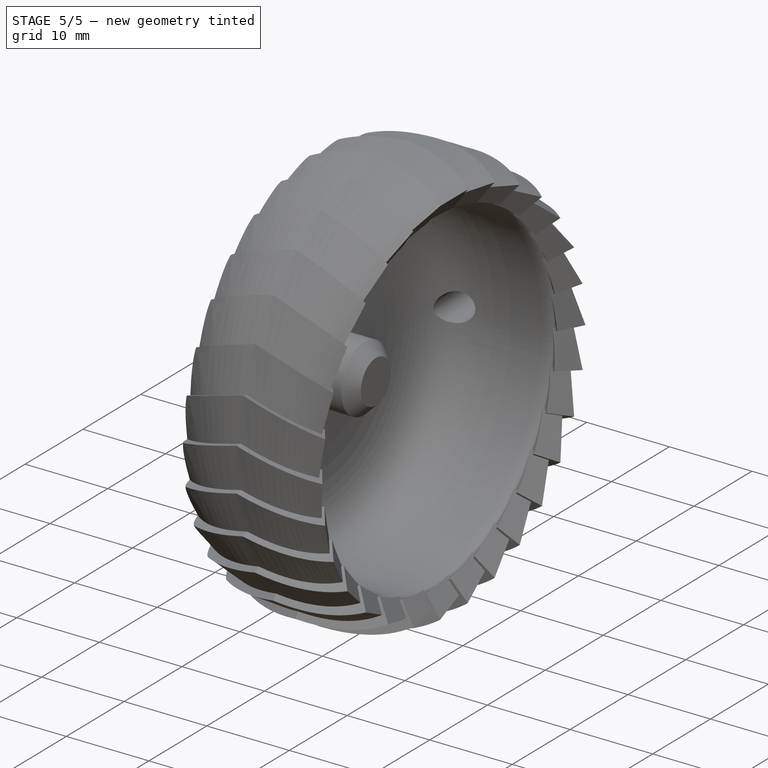
[diagram: stage 5 of 5 — iso view after this stage's code; geometry added in this stage tinted green]
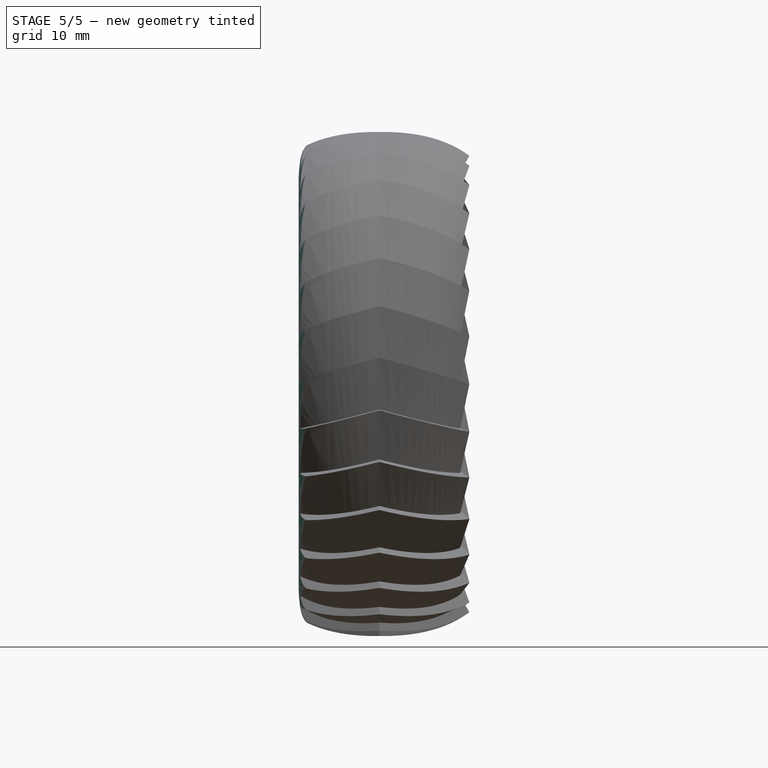
[diagram: stage 5 of 5 — front view after this stage's code; geometry added in this stage tinted green]
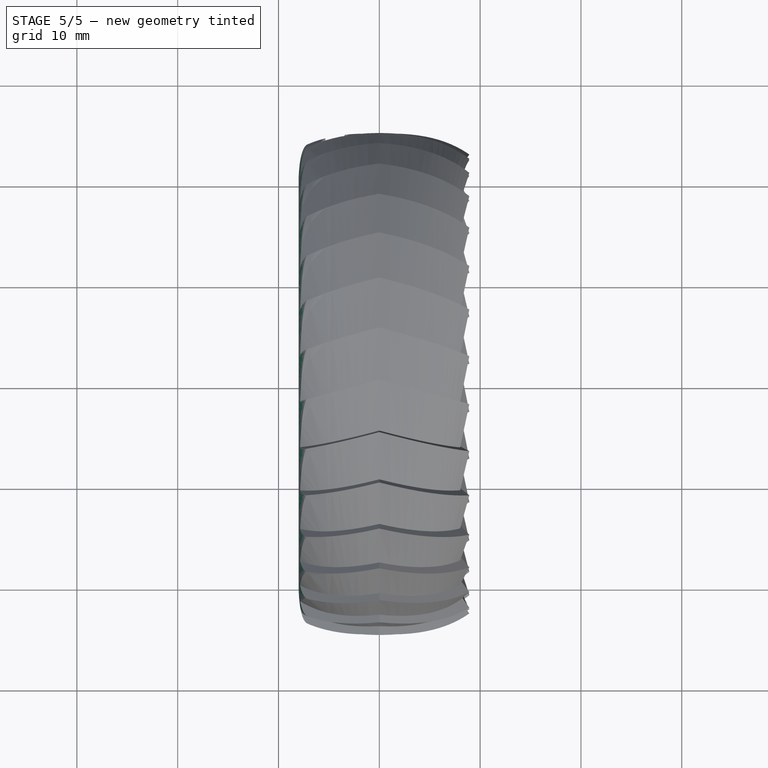
[diagram: stage 5 of 5 — top view after this stage's code; geometry added in this stage tinted green]
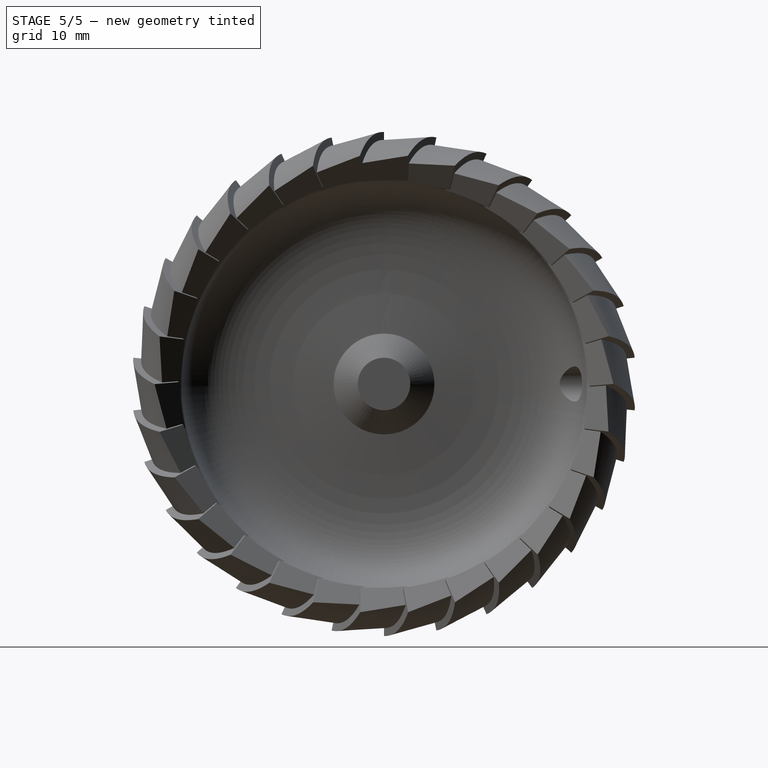
[diagram: stage 5 of 5 — right view after this stage's code; geometry added in this stage tinted green]
FEATURE [Sketcher::SketchObject] Sketch016
  FullyConstrained = true
  MapMode = 5
  Placement = pos=(-8,1.8e-15,-1.8e-15) rot=(0.57735,0.57735,0.57735;2.0944rad)
  Support = -> [DatumPlane003]
  expr: Constraints[1] = <<Params>>.diameter * 1
  sketch-geometry (1):
    g0: Circle CenterX=0 CenterY=0 CenterZ=0 NormalX=0 NormalY=0 NormalZ=1 AngleXU=0 Radius=25
  constraints (2):
    c: Coincident(g0,g-1)
    c: Diameter(g0) = 50
FEATURE [PartDesign::Pocket] Pocket007
  BaseFeature = -> Pocket006
  ClaimChildren = false
  Fit = 0
  FitJoin = 0
  InnerFit = 0
  InnerFitJoin = 0
  InnerTaperAngle = 0
  InnerTaperAngleRev = 0
  Length = 5
  Length2 = 100
  Linearize = true
  NewSolid = false
  Placement = pos=(0,0,0) rot=(0.57735,0.57735,0.57735;2.0944rad)
  Profile = -> Sketch016
  Suppress = false
  Type = 0
  _ProfileBasedVersion = 1
FEATURE [Sketcher::SketchObject] Sketch017
  FullyConstrained = false
  MapMode = 5
  Support = -> [XY_Plane001]
  sketch-geometry (8):
    g0: LineSegment StartX=-8 StartY=23.5694 StartZ=0 EndX=-8 EndY=18.2689 EndZ=0
    g1: LineSegment StartX=-8 StartY=23.5694 StartZ=0 EndX=-6.83896 EndY=23.9216 EndZ=0
    g2: Circle [constr] CenterX=-6.83896 CenterY=23.9216 CenterZ=0 NormalX=0 NormalY=0 NormalZ=1 AngleXU=0 Radius=1
    g3: Circle [constr] CenterX=-8.17546 CenterY=23.751 CenterZ=0 NormalX=0 NormalY=0 NormalZ=1 AngleXU=0 Radius=1
    g4: Circle [constr] CenterX=-8 CenterY=18.2689 CenterZ=0 NormalX=0 NormalY=0 NormalZ=1 AngleXU=0 Radius=1
    g5: BSplineCurve PolesCount=3 KnotsCount=2 Degree=2 IsPeriodic=0
    g6: GeomPoint [constr] X=-6.83896 Y=23.9216 Z=0
    g7: GeomPoint [constr] X=-8 Y=18.2689 Z=0
  constraints (13):
    c: Vertical(g0)
    c: DistanceX(g0,g-1) = 8
    c: Coincident(g1,g0)
    c: Coincident(g5,g1)
    c: Weight(g2) = 1
    c: Equal(g2,g3)
    c: Equal(g2,g4)
    c: Coincident(g5,g0)
    c: InternalAlignment(g2,g5)
    c: InternalAlignment(g3,g5)
    c: InternalAlignment(g4,g5)
    c: InternalAlignment(g6,g5)
    c: InternalAlignment(g7,g5)
FEATURE [PartDesign::Groove] Groove001
  Angle = 360
  Axis = (1,0,0)
  Base = (0,0,0)
  BaseFeature = -> Pocket007
  ClaimChildren = false
  Fit = 0
  FitJoin = 0
  InnerFit = 0
  InnerFitJoin = 0
  NewSolid = false
  Placement = pos=(0,0,0) rot=(0.57735,0.57735,0.57735;2.0944rad)
  Profile = -> Sketch017
  ReferenceAxis = -> X_Axis001
  Reversed = true
  Suppress = false
  _ProfileBasedVersion = 1
FEATURE [PartDesign::Pocket] Pocket002
  BaseFeature = -> Chamfer004
  ClaimChildren = false
  Fit = 0
  FitJoin = 0
  InnerFit = 0
  InnerFitJoin = 0
  InnerTaperAngle = 0
  InnerTaperAngleRev = 0
  Length = 50
  Length2 = -10
  Linearize = true
  NewSolid = false
  Placement = pos=(0,0,0) rot=(0.57735,0.57735,0.57735;2.0944rad)
  Profile = -> Sketch005
  Suppress = false
  Type = 4
  _ProfileBasedVersion = 1
FEATURE [PartDesign::Pocket] Pocket003
  BaseFeature = -> Pocket002
  ClaimChildren = false
  Fit = 0
  FitJoin = 0
  InnerFit = 0
  InnerFitJoin = 0
  InnerTaperAngle = 0
  InnerTaperAngleRev = 0
  Length = 5
  Length2 = 100
  Linearize = true
  NewSolid = false
  Placement = pos=(0,0,0) rot=(0.57735,0.57735,0.57735;2.0944rad)
  Profile = -> Sketch007
  Suppress = false
  Type = 0
  _ProfileBasedVersion = 1
FEATURE [PartDesign::Groove] Groove
  Angle = 360
  Axis = (1,0,0)
  Base = (0,0,0)
  BaseFeature = -> Pocket003
  ClaimChildren = false
  Fit = 0
  FitJoin = 0
  InnerFit = 0
  InnerFitJoin = 0
  NewSolid = false
  Placement = pos=(0,0,0) rot=(0.57735,0.57735,0.57735;2.0944rad)
  Profile = -> Sketch008
  ReferenceAxis = -> X_Axis
  Reversed = true
  Suppress = false
  _ProfileBasedVersion = 1
FEATURE [PartDesign::Body] Body  label="Wheel2"
  AutoGroupSolids = false
  ExportMode = 0
  Group = -> [Sketch,DatumPlane,Sketch001,AdditivePipe,PolarPattern,Mirrored,DatumPlane001,Sketch002,Pad,Sketch003,Pocket,Sketch004,Pocket001,Chamfer,Chamfer001,Revolution,Chamfer004,Sketch005,Pocket002,Sketch006,Sketch007,Pocket003,Sketch008,Groove]
  Origin = -> Origin
  Tip = -> Groove
  _ExportChildren = -> [DatumPlane,AdditivePipe,PolarPattern,Mirrored,DatumPlane001,Pad,Pocket,Pocket001,Chamfer,Chamfer001,Revolution,Chamfer004,Pocket002,Pocket003,Groove]
  _GroupVersion = 1
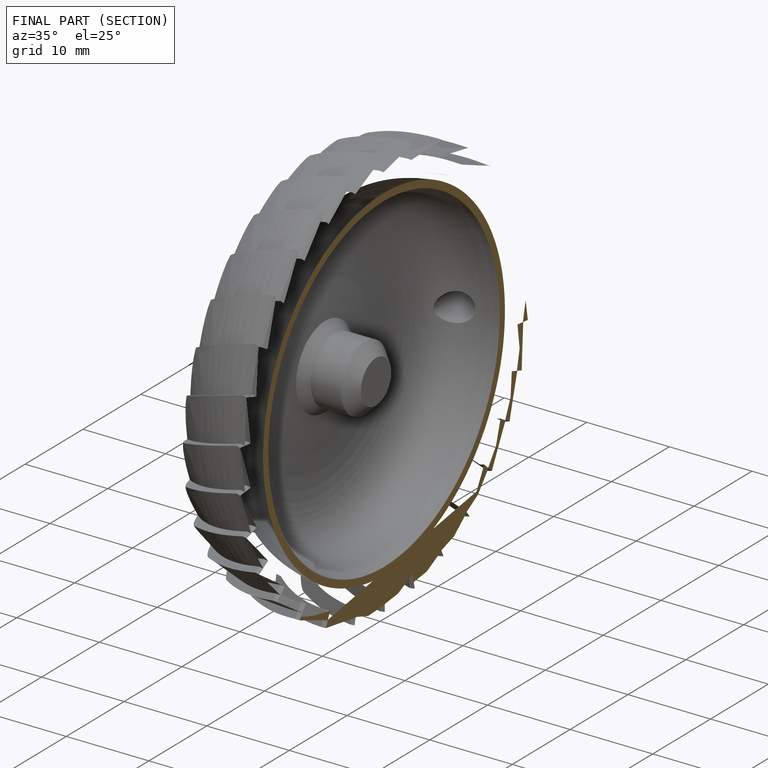
[diagram: finished part — half-section view (interior)]
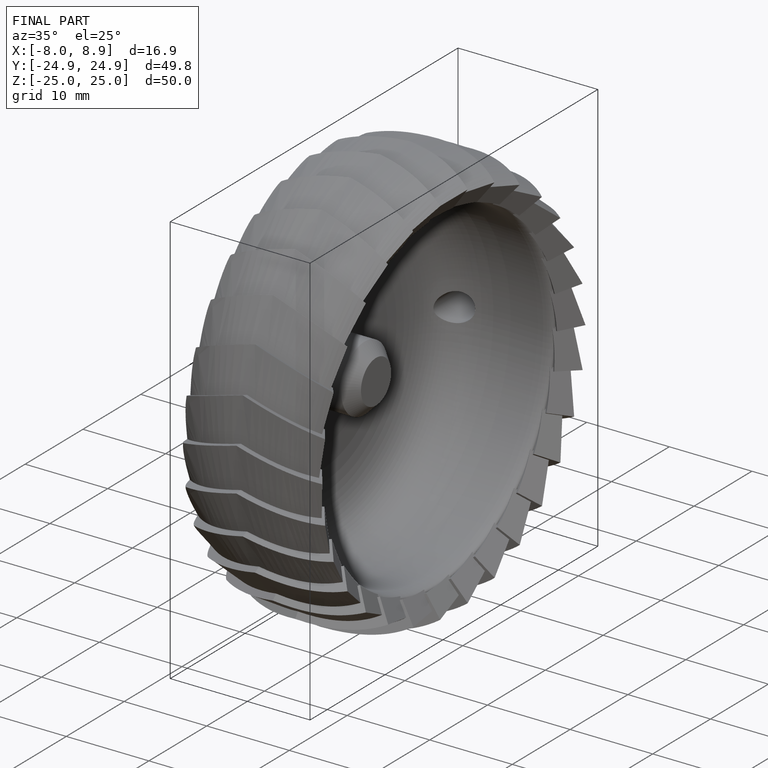
[diagram: finished part — iso view with bounding-box wireframe]
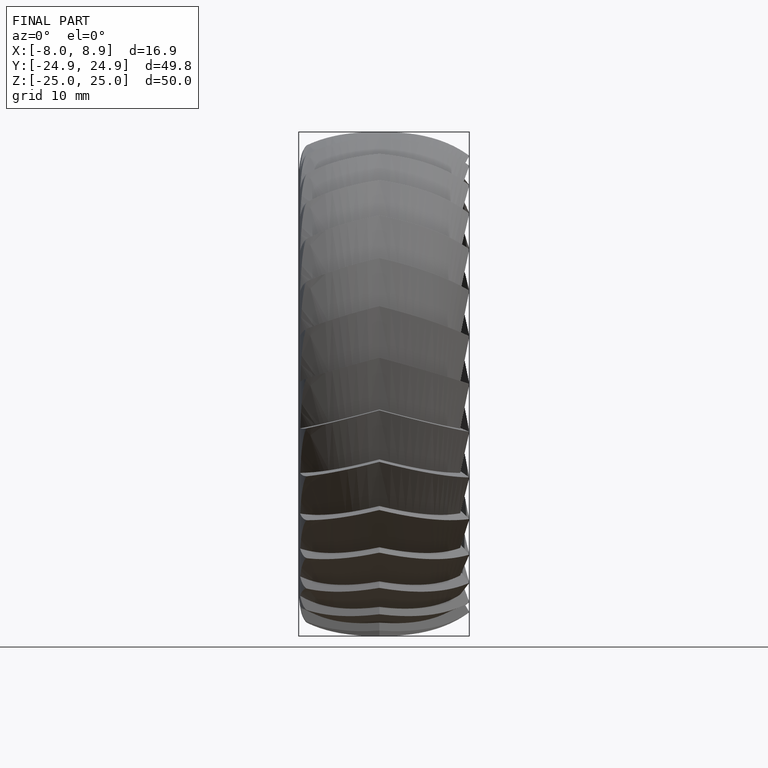
[diagram: finished part — front view with bounding-box wireframe]
